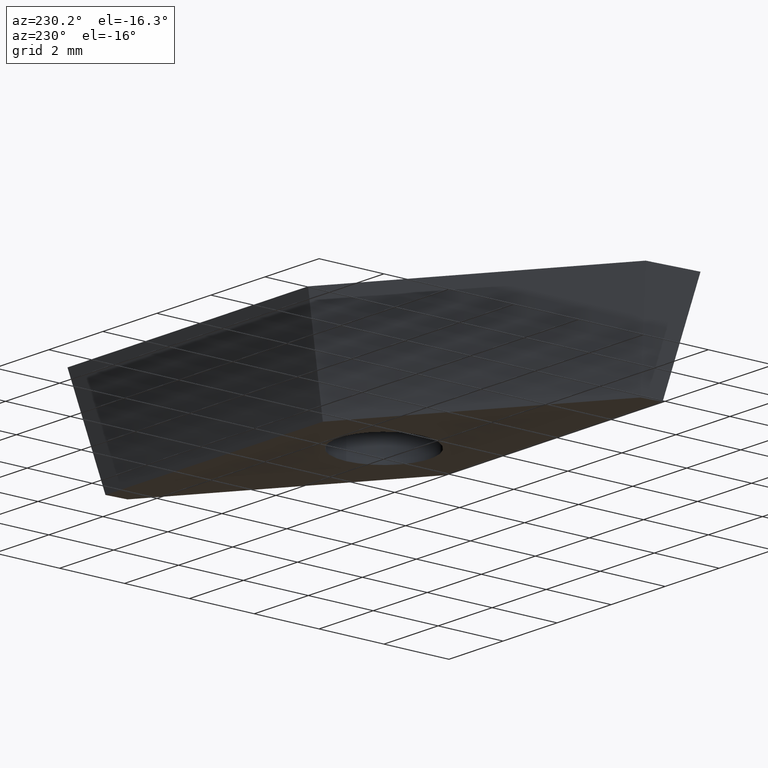
[diagram: clean part render]
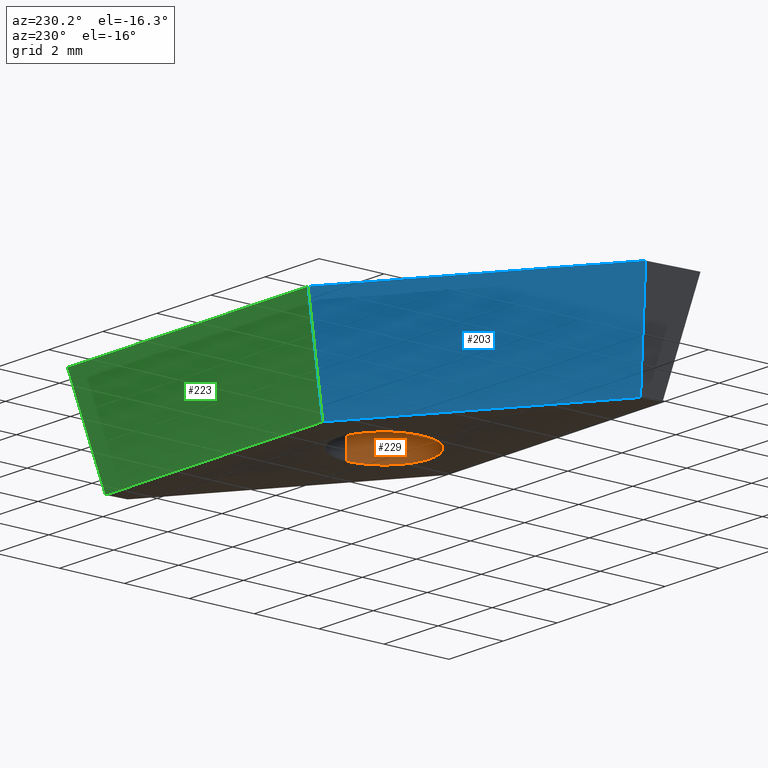
[diagram: same view with three faces highlighted in distinct colors, each labeled with its STEP entity id]
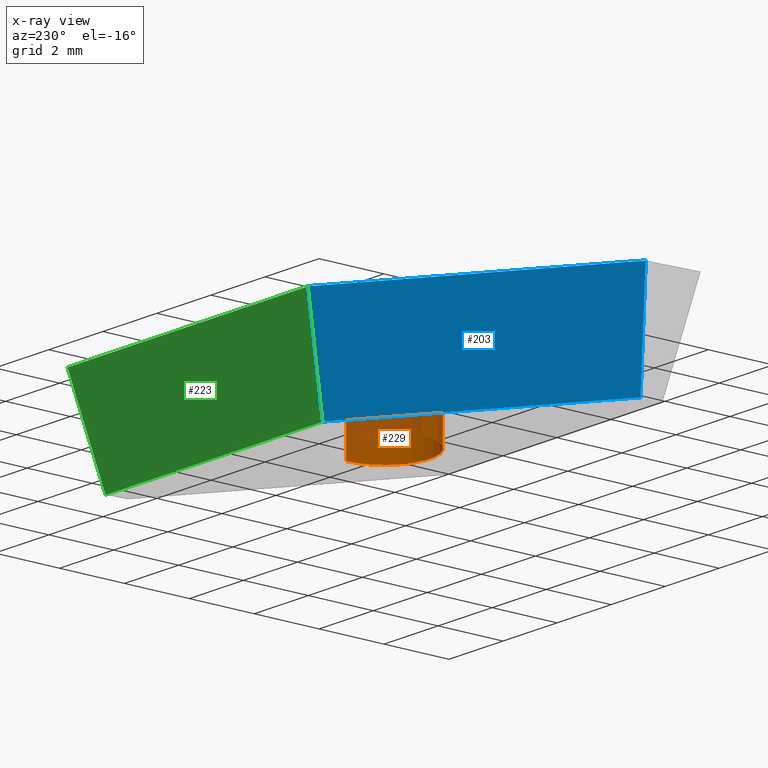
[diagram: x-ray of the same camera — body ghosted, the three highlighted faces saturated]
A machine part, auxiliary view with three faces highlighted in distinct colors.
The next image is the same camera in x-ray (body ghosted, the three faces saturated) — at least one of them is partly hidden behind the body in this view.
Their STEP definitions:

[orange] entity #229 — the highlighted cylindrical surface (partial cylindrical patch) has radius 1.4 mm, axis along (-0, -0, 1).
#10 = VERTEX_POINT ( 'NONE', #113 ) ;
#11 = ORIENTED_EDGE ( 'NONE', *, *, #70, .F. ) ;
#32 = CARTESIAN_POINT ( 'NONE',  ( -1.399999999999999900, 1.714505518806294100E-016, -3.180000000000000200 ) ) ;
#34 = DIRECTION ( 'NONE',  ( -0.0000000000000000000, -0.0000000000000000000, 1.000000000000000000 ) ) ;
#57 = VECTOR ( 'NONE', #34, 1000.000000000000000 ) ;
#64 = CIRCLE ( 'NONE', #282, 1.399999999999999900 ) ;
#70 = EDGE_CURVE ( 'NONE', #324, #216, #187, .T. ) ;
#73 = CYLINDRICAL_SURFACE ( 'NONE', #273, 1.399999999999999900 ) ;
#80 = LINE ( 'NONE', #32, #57 ) ;
#83 = DIRECTION ( 'NONE',  ( 1.000000000000000000, 0.0000000000000000000, 0.0000000000000000000 ) ) ;
#84 = DIRECTION ( 'NONE',  ( 0.0000000000000000000, 0.0000000000000000000, 1.000000000000000000 ) ) ;
#87 = CARTESIAN_POINT ( 'NONE',  ( 0.0000000000000000000, 0.0000000000000000000, 0.0000000000000000000 ) ) ;
#100 = DIRECTION ( 'NONE',  ( -0.0000000000000000000, -0.0000000000000000000, 1.000000000000000000 ) ) ;
#106 = CARTESIAN_POINT ( 'NONE',  ( 1.399999999999999900, 0.0000000000000000000, -3.180000000000000200 ) ) ;
#113 = CARTESIAN_POINT ( 'NONE',  ( -1.399999999999999900, 1.714505518806294100E-016, -3.180000000000000200 ) ) ;
#115 = CARTESIAN_POINT ( 'NONE',  ( 1.399999999999999900, 0.0000000000000000000, -3.180000000000000200 ) ) ;
#120 = CARTESIAN_POINT ( 'NONE',  ( 0.0000000000000000000, 0.0000000000000000000, -3.180000000000000200 ) ) ;
#123 = FACE_OUTER_BOUND ( 'NONE', #297, .T. ) ;
#171 = CIRCLE ( 'NONE', #205, 1.399999999999999900 ) ;
#179 = VECTOR ( 'NONE', #100, 1000.000000000000000 ) ;
#185 = CARTESIAN_POINT ( 'NONE',  ( 1.399999999999999900, 0.0000000000000000000, 0.0000000000000000000 ) ) ;
#187 = LINE ( 'NONE', #115, #179 ) ;
#197 = EDGE_CURVE ( 'NONE', #10, #324, #171, .T. ) ;
#205 = AXIS2_PLACEMENT_3D ( 'NONE', #333, #334, #336 ) ;
#216 = VERTEX_POINT ( 'NONE', #185 ) ;
#229 = ADVANCED_FACE ( 'NONE', ( #123 ), #73, .F. ) ;
#231 = DIRECTION ( 'NONE',  ( 1.000000000000000000, 0.0000000000000000000, 0.0000000000000000000 ) ) ;
#240 = VERTEX_POINT ( 'NONE', #296 ) ;
#273 = AXIS2_PLACEMENT_3D ( 'NONE', #120, #350, #231 ) ;
#282 = AXIS2_PLACEMENT_3D ( 'NONE', #87, #84, #83 ) ;
#296 = CARTESIAN_POINT ( 'NONE',  ( -1.399999999999999900, 1.714505518806294100E-016, 0.0000000000000000000 ) ) ;
#297 = EDGE_LOOP ( 'NONE', ( #311, #314, #301, #11 ) ) ;
#301 = ORIENTED_EDGE ( 'NONE', *, *, #326, .T. ) ;
#305 = EDGE_CURVE ( 'NONE', #10, #240, #80, .T. ) ;
#311 = ORIENTED_EDGE ( 'NONE', *, *, #197, .F. ) ;
#314 = ORIENTED_EDGE ( 'NONE', *, *, #305, .T. ) ;
#324 = VERTEX_POINT ( 'NONE', #106 ) ;
#326 = EDGE_CURVE ( 'NONE', #240, #216, #64, .T. ) ;
#333 = CARTESIAN_POINT ( 'NONE',  ( 0.0000000000000000000, 0.0000000000000000000, -3.180000000000000200 ) ) ;
#334 = DIRECTION ( 'NONE',  ( 0.0000000000000000000, 0.0000000000000000000, 1.000000000000000000 ) ) ;
#336 = DIRECTION ( 'NONE',  ( 1.000000000000000000, 0.0000000000000000000, 0.0000000000000000000 ) ) ;
#350 = DIRECTION ( 'NONE',  ( -0.0000000000000000000, -0.0000000000000000000, 1.000000000000000000 ) ) ;

[blue] entity #203 — the highlighted planar face has unit normal (-0.563, 0.8041, -0.1908).
#5 = VECTOR ( 'NONE', #65, 1000.000000000000100 ) ;
#7 = VERTEX_POINT ( 'NONE', #110 ) ;
#8 = EDGE_LOOP ( 'NONE', ( #204, #209, #214, #217 ) ) ;
#22 = LINE ( 'NONE', #88, #29 ) ;
#27 = LINE ( 'NONE', #67, #5 ) ;
#29 = VECTOR ( 'NONE', #63, 1000.000000000000100 ) ;
#36 = CARTESIAN_POINT ( 'NONE',  ( -7.788289079147451900, -1.577459403657731600, 0.0000000000000000000 ) ) ;
#63 = DIRECTION ( 'NONE',  ( -0.06005326349153970700, 0.1904646183547176200, 0.9798555172570124800 ) ) ;
#65 = DIRECTION ( 'NONE',  ( -0.1832382521941805800, 0.1036712150141736000, 0.9775868360970839700 ) ) ;
#67 = CARTESIAN_POINT ( 'NONE',  ( -7.788289079147451900, -1.577459403657731600, 0.0000000000000000000 ) ) ;
#72 = VECTOR ( 'NONE', #312, 1000.000000000000100 ) ;
#75 = DIRECTION ( 'NONE',  ( -0.5630382217072211800, 0.8041019140508022200, -0.1908089953765452500 ) ) ;
#88 = CARTESIAN_POINT ( 'NONE',  ( -1.001073654690764600, 3.174999999999999800, 0.0000000000000000000 ) ) ;
#98 = CARTESIAN_POINT ( 'NONE',  ( -7.788289079147451900, -1.577459403657731600, 0.0000000000000000000 ) ) ;
#110 = CARTESIAN_POINT ( 'NONE',  ( -1.001073654690764600, 3.174999999999999800, 0.0000000000000000000 ) ) ;
#119 = CARTESIAN_POINT ( 'NONE',  ( -7.788289079147451900, -1.577459403657731600, 0.0000000000000000000 ) ) ;
#124 = LINE ( 'NONE', #119, #72 ) ;
#139 = CARTESIAN_POINT ( 'NONE',  ( -7.433744630409207400, -2.083801351424743800, -3.180000000000000200 ) ) ;
#142 = CARTESIAN_POINT ( 'NONE',  ( -0.8061782088420828000, 2.556870616942053400, -3.180000000000000200 ) ) ;
#153 = DIRECTION ( 'NONE',  ( -0.8191520442889950200, -0.5735764363510415000, 0.0000000000000000000 ) ) ;
#159 = LINE ( 'NONE', #139, #167 ) ;
#160 = DIRECTION ( 'NONE',  ( -0.8191520442889950200, -0.5735764363510415000, 0.0000000000000000000 ) ) ;
#162 = PLANE ( 'NONE',  #343 ) ;
#167 = VECTOR ( 'NONE', #153, 1000.000000000000000 ) ;
#169 = FACE_OUTER_BOUND ( 'NONE', #8, .T. ) ;
#203 = ADVANCED_FACE ( 'NONE', ( #169 ), #162, .T. ) ;
#204 = ORIENTED_EDGE ( 'NONE', *, *, #244, .F. ) ;
#208 = EDGE_CURVE ( 'NONE', #212, #243, #159, .T. ) ;
#209 = ORIENTED_EDGE ( 'NONE', *, *, #339, .F. ) ;
#212 = VERTEX_POINT ( 'NONE', #142 ) ;
#214 = ORIENTED_EDGE ( 'NONE', *, *, #208, .T. ) ;
#217 = ORIENTED_EDGE ( 'NONE', *, *, #332, .T. ) ;
#243 = VERTEX_POINT ( 'NONE', #300 ) ;
#244 = EDGE_CURVE ( 'NONE', #7, #294, #124, .T. ) ;
#294 = VERTEX_POINT ( 'NONE', #36 ) ;
#300 = CARTESIAN_POINT ( 'NONE',  ( -7.192231910145610900, -1.914692324122642800, -3.180000000000000200 ) ) ;
#312 = DIRECTION ( 'NONE',  ( -0.8191520442889951300, -0.5735764363510415000, -0.0000000000000000000 ) ) ;
#332 = EDGE_CURVE ( 'NONE', #243, #294, #27, .T. ) ;
#339 = EDGE_CURVE ( 'NONE', #212, #7, #22, .T. ) ;
#343 = AXIS2_PLACEMENT_3D ( 'NONE', #98, #75, #160 ) ;

[green] entity #223 — the highlighted planar face has unit normal (-0, 0.9816, -0.1908).
#7 = VERTEX_POINT ( 'NONE', #110 ) ;
#15 = LINE ( 'NONE', #53, #303 ) ;
#17 = LINE ( 'NONE', #127, #184 ) ;
#22 = LINE ( 'NONE', #88, #29 ) ;
#24 = EDGE_CURVE ( 'NONE', #292, #302, #17, .T. ) ;
#28 = VECTOR ( 'NONE', #166, 1000.000000000000000 ) ;
#29 = VECTOR ( 'NONE', #63, 1000.000000000000100 ) ;
#33 = LINE ( 'NONE', #107, #28 ) ;
#45 = DIRECTION ( 'NONE',  ( -1.000000000000000000, -9.744461978823348800E-017, -0.0000000000000000000 ) ) ;
#53 = CARTESIAN_POINT ( 'NONE',  ( -1.001073654690764600, 3.174999999999999800, 0.0000000000000000000 ) ) ;
#63 = DIRECTION ( 'NONE',  ( -0.06005326349153970700, 0.1904646183547176200, 0.9798555172570124800 ) ) ;
#77 = CARTESIAN_POINT ( 'NONE',  ( 7.900000000000000400, 3.175000000000000700, 0.0000000000000000000 ) ) ;
#88 = CARTESIAN_POINT ( 'NONE',  ( -1.001073654690764600, 3.174999999999999800, 0.0000000000000000000 ) ) ;
#96 = PLANE ( 'NONE',  #281 ) ;
#107 = CARTESIAN_POINT ( 'NONE',  ( -1.001073654690764600, 2.556870616942053400, -3.180000000000000200 ) ) ;
#110 = CARTESIAN_POINT ( 'NONE',  ( -1.001073654690764600, 3.174999999999999800, 0.0000000000000000000 ) ) ;
#112 = DIRECTION ( 'NONE',  ( 0.2004640746510997800, 0.1869357738407769500, 0.9617011860410842300 ) ) ;
#127 = CARTESIAN_POINT ( 'NONE',  ( 7.900000000000000400, 3.175000000000000700, 0.0000000000000000000 ) ) ;
#142 = CARTESIAN_POINT ( 'NONE',  ( -0.8061782088420828000, 2.556870616942053400, -3.180000000000000200 ) ) ;
#158 = FACE_OUTER_BOUND ( 'NONE', #307, .T. ) ;
#166 = DIRECTION ( 'NONE',  ( -1.000000000000000000, -9.744461978823350000E-017, 0.0000000000000000000 ) ) ;
#184 = VECTOR ( 'NONE', #112, 1000.000000000000100 ) ;
#194 = CARTESIAN_POINT ( 'NONE',  ( -1.001073654690764600, 3.174999999999999800, 0.0000000000000000000 ) ) ;
#212 = VERTEX_POINT ( 'NONE', #142 ) ;
#219 = ORIENTED_EDGE ( 'NONE', *, *, #356, .F. ) ;
#222 = ORIENTED_EDGE ( 'NONE', *, *, #24, .F. ) ;
#223 = ADVANCED_FACE ( 'NONE', ( #158 ), #96, .T. ) ;
#228 = ORIENTED_EDGE ( 'NONE', *, *, #323, .T. ) ;
#233 = ORIENTED_EDGE ( 'NONE', *, *, #339, .T. ) ;
#268 = DIRECTION ( 'NONE',  ( -9.565428766485213700E-017, 0.9816271834476639800, -0.1908089953765452800 ) ) ;
#281 = AXIS2_PLACEMENT_3D ( 'NONE', #194, #268, #348 ) ;
#292 = VERTEX_POINT ( 'NONE', #315 ) ;
#302 = VERTEX_POINT ( 'NONE', #77 ) ;
#303 = VECTOR ( 'NONE', #45, 1000.000000000000000 ) ;
#307 = EDGE_LOOP ( 'NONE', ( #219, #222, #228, #233 ) ) ;
#315 = CARTESIAN_POINT ( 'NONE',  ( 7.237137390861797700, 2.556870616942054300, -3.180000000000000200 ) ) ;
#323 = EDGE_CURVE ( 'NONE', #292, #212, #33, .T. ) ;
#339 = EDGE_CURVE ( 'NONE', #212, #7, #22, .T. ) ;
#348 = DIRECTION ( 'NONE',  ( 0.0000000000000000000, 0.1908089953765452800, 0.9816271834476639800 ) ) ;
#356 = EDGE_CURVE ( 'NONE', #302, #7, #15, .T. ) ;